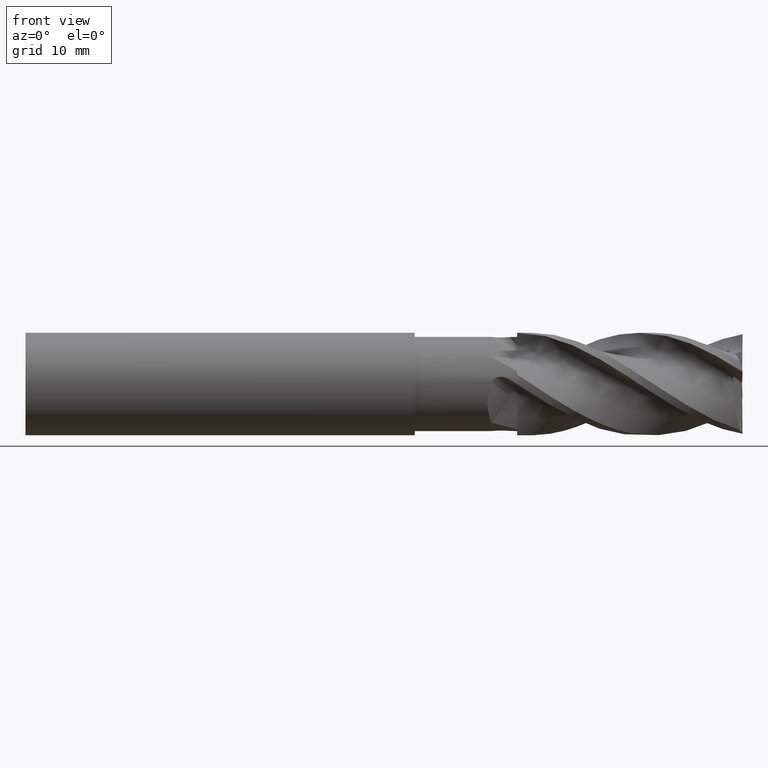
[diagram: clean part render]
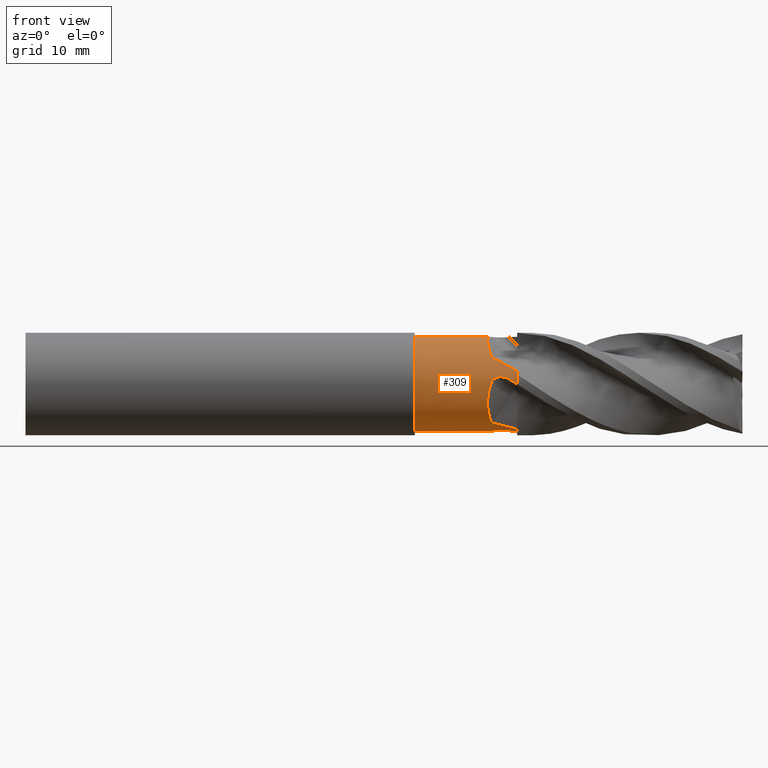
[diagram: same view with one face highlighted and labeled with its STEP entity id]
A machine part, front view. The second image highlights one B-rep face of the part: STEP entity #309.
In plain terms, the highlighted cylindrical surface (partial cylindrical patch) has radius 4.6 mm, axis along (-1, -0, -0).
Its self-contained STEP definition (entity closure, byte-faithful):
#35 = CYLINDRICAL_SURFACE ( 'NONE', #132, 4.600000000000010300 ) ;
#86 = FACE_OUTER_BOUND ( 'NONE', #528, .T. ) ;
#132 = AXIS2_PLACEMENT_3D ( 'NONE', #6693, #6692, #6694 ) ;
#231 = B_SPLINE_CURVE_WITH_KNOTS ( 'NONE', 3,
 ( #3696, #3706, #3707, #3708, #3709, #3710, #3711 ),
 .UNSPECIFIED., .F., .F.,
 ( 4, 3, 4 ),
 ( 0.0000000000000000000, 0.0004603173848410696700, 0.0009209682350431431300 ),
 .UNSPECIFIED. ) ;
#265 = B_SPLINE_CURVE_WITH_KNOTS ( 'NONE', 3,
 ( #3535, #3539, #3540, #3541 ),
 .UNSPECIFIED., .F., .F.,
 ( 4, 4 ),
 ( 0.0000000000000000000, 0.0001394669327448985800 ),
 .UNSPECIFIED. ) ;
#266 = B_SPLINE_CURVE_WITH_KNOTS ( 'NONE', 3,
 ( #3520, #3524, #3525, #3526, #3527, #3528, #3529 ),
 .UNSPECIFIED., .F., .F.,
 ( 4, 3, 4 ),
 ( 0.0000000000000000000, 0.0004603173848409889600, 0.0009209682350429780100 ),
 .UNSPECIFIED. ) ;
#272 = B_SPLINE_CURVE_WITH_KNOTS ( 'NONE', 3,
 ( #3559, #3576, #3577, #3578 ),
 .UNSPECIFIED., .F., .F.,
 ( 4, 4 ),
 ( 0.0000000000000000000, 0.002905963386923827700 ),
 .UNSPECIFIED. ) ;
#275 = B_SPLINE_CURVE_WITH_KNOTS ( 'NONE', 3,
 ( #3611, #3619, #3620, #3621, #3622, #3623, #3624, #3625, #3626, #3627, #3628, #3629, #3630, #3631, #3632, #3633 ),
 .UNSPECIFIED., .F., .F.,
 ( 4, 2, 2, 2, 2, 2, 2, 4 ),
 ( 0.0000000000000000000, 0.001154803165783937200, 0.001732204748675906200, 0.002309606331567875200, 0.002887007914459845500, 0.003464409497351815000, 0.004041811080243784900, 0.004619212663135753900 ),
 .UNSPECIFIED. ) ;
#282 = B_SPLINE_CURVE_WITH_KNOTS ( 'NONE', 3,
 ( #3573, #3594, #3595, #3596, #3597, #3598, #3599, #3600, #3601, #3602 ),
 .UNSPECIFIED., .F., .F.,
 ( 4, 2, 2, 2, 4 ),
 ( 7.489632195324384100E-018, 0.0005000383848467683400, 0.001000076769693529300, 0.001500115154540290300, 0.002000153539387050800 ),
 .UNSPECIFIED. ) ;
#291 = B_SPLINE_CURVE_WITH_KNOTS ( 'NONE', 3,
 ( #3756, #3763, #3764, #3765, #3766, #3767, #3768, #3769 ),
 .UNSPECIFIED., .F., .F.,
 ( 4, 2, 2, 4 ),
 ( 0.0001394669327448974200, 0.001259403365342574600, 0.002379339797940251900, 0.004619212663135605600 ),
 .UNSPECIFIED. ) ;
#309 = ADVANCED_FACE ( 'NONE', ( #86 ), #35, .T. ) ;
#356 = B_SPLINE_CURVE_WITH_KNOTS ( 'NONE', 3,
 ( #4092, #4105, #4106, #4107 ),
 .UNSPECIFIED., .F., .F.,
 ( 4, 4 ),
 ( 0.0000000000000000000, 0.002905963386928197100 ),
 .UNSPECIFIED. ) ;
#358 = B_SPLINE_CURVE_WITH_KNOTS ( 'NONE', 3,
 ( #4102, #4111, #4112, #4113, #4114, #4115, #4116, #4117, #4118, #4119 ),
 .UNSPECIFIED., .F., .F.,
 ( 4, 2, 2, 2, 4 ),
 ( 1.893477691975264900E-018, 0.0005000383848470057800, 0.001000076769694009800, 0.001500115154541013700, 0.002000153539388017500 ),
 .UNSPECIFIED. ) ;
#387 = EDGE_CURVE ( 'NONE', #3946, #3849, #266, .T. ) ;
#390 = EDGE_CURVE ( 'NONE', #3809, #3814, #543, .T. ) ;
#392 = EDGE_CURVE ( 'NONE', #3898, #3985, #265, .T. ) ;
#400 = EDGE_CURVE ( 'NONE', #3873, #3959, #272, .T. ) ;
#403 = EDGE_CURVE ( 'NONE', #3945, #3909, #282, .T. ) ;
#410 = EDGE_CURVE ( 'NONE', #3909, #3959, #275, .T. ) ;
#422 = EDGE_CURVE ( 'NONE', #3866, #3945, #231, .T. ) ;
#437 = EDGE_CURVE ( 'NONE', #3809, #3907, #291, .T. ) ;
#441 = EDGE_CURVE ( 'NONE', #3866, #3808, #1878, .T. ) ;
#443 = EDGE_CURVE ( 'NONE', #3946, #3873, #1880, .T. ) ;
#448 = EDGE_CURVE ( 'NONE', #3978, #3814, #1882, .T. ) ;
#456 = EDGE_CURVE ( 'NONE', #3985, #3978, #1883, .T. ) ;
#461 = EDGE_CURVE ( 'NONE', #3808, #3907, #356, .T. ) ;
#463 = EDGE_CURVE ( 'NONE', #3849, #3898, #358, .T. ) ;
#528 = EDGE_LOOP ( 'NONE', ( #2155, #2140, #2129, #2179, #2224, #2225, #2119, #2161, #2159, #2160, #2215, #2123, #2189, #2188 ) ) ;
#543 = LINE ( 'NONE', #3483, #558 ) ;
#558 = VECTOR ( 'NONE', #3534, 1000.000000000000000 ) ;
#1836 = AXIS2_PLACEMENT_3D ( 'NONE', #3790, #3791, #3792 ) ;
#1853 = AXIS2_PLACEMENT_3D ( 'NONE', #5610, #4019, #4020 ) ;
#1861 = AXIS2_PLACEMENT_3D ( 'NONE', #3798, #3799, #3800 ) ;
#1878 = CIRCLE ( 'NONE', #1836, 4.600000000000011200 ) ;
#1880 = CIRCLE ( 'NONE', #1861, 4.600000000000011200 ) ;
#1882 = CIRCLE ( 'NONE', #1853, 4.600000000000010300 ) ;
#1883 = LINE ( 'NONE', #4077, #1885 ) ;
#1885 = VECTOR ( 'NONE', #4078, 1000.000000000000000 ) ;
#2119 = ORIENTED_EDGE ( 'NONE', *, *, #410, .F. ) ;
#2123 = ORIENTED_EDGE ( 'NONE', *, *, #437, .F. ) ;
#2129 = ORIENTED_EDGE ( 'NONE', *, *, #463, .F. ) ;
#2140 = ORIENTED_EDGE ( 'NONE', *, *, #392, .F. ) ;
#2155 = ORIENTED_EDGE ( 'NONE', *, *, #456, .F. ) ;
#2159 = ORIENTED_EDGE ( 'NONE', *, *, #422, .F. ) ;
#2160 = ORIENTED_EDGE ( 'NONE', *, *, #441, .T. ) ;
#2161 = ORIENTED_EDGE ( 'NONE', *, *, #403, .F. ) ;
#2179 = ORIENTED_EDGE ( 'NONE', *, *, #387, .F. ) ;
#2188 = ORIENTED_EDGE ( 'NONE', *, *, #448, .F. ) ;
#2189 = ORIENTED_EDGE ( 'NONE', *, *, #390, .T. ) ;
#2215 = ORIENTED_EDGE ( 'NONE', *, *, #461, .T. ) ;
#2224 = ORIENTED_EDGE ( 'NONE', *, *, #443, .T. ) ;
#2225 = ORIENTED_EDGE ( 'NONE', *, *, #400, .T. ) ;
#3483 = CARTESIAN_POINT ( 'NONE',  ( -39.76065438357068200, 0.0000000000000000000, 4.600000000000010300 ) ) ;
#3520 = CARTESIAN_POINT ( 'NONE',  ( 8.000000000000007100, 3.036449750968037500E-014, -4.605184375000007400 ) ) ;
#3524 = CARTESIAN_POINT ( 'NONE',  ( 7.868793384392407800, -0.07955117917516911500, -4.600000000000104400 ) ) ;
#3525 = CARTESIAN_POINT ( 'NONE',  ( 7.737590184320711600, -0.1591347650812219000, -4.597935103368228300 ) ) ;
#3526 = CARTESIAN_POINT ( 'NONE',  ( 7.606393851123984400, -0.2385957955032738100, -4.593808011483311300 ) ) ;
#3527 = CARTESIAN_POINT ( 'NONE',  ( 7.475102490557719500, -0.3181143806794700100, -4.589677930287061600 ) ) ;
#3528 = CARTESIAN_POINT ( 'NONE',  ( 7.343794155087728400, -0.3975244961901638300, -4.583482383769851500 ) ) ;
#3529 = CARTESIAN_POINT ( 'NONE',  ( 7.212488416756833100, -0.4766979687024656700, -4.575233223195840400 ) ) ;
#3534 = DIRECTION ( 'NONE',  ( -1.000000000000000000, -0.0000000000000000000, -0.0000000000000000000 ) ) ;
#3535 = CARTESIAN_POINT ( 'NONE',  ( 5.479653657439059500, -0.1325791013078299600, -4.598089035881808500 ) ) ;
#3539 = CARTESIAN_POINT ( 'NONE',  ( 5.462954686791660700, -0.08848032806910706400, -4.599360558829519400 ) ) ;
#3540 = CARTESIAN_POINT ( 'NONE',  ( 5.446892736289899300, -0.04428547051299492500, -4.599999999999997000 ) ) ;
#3541 = CARTESIAN_POINT ( 'NONE',  ( 5.431449277500711000, -1.505089455844377300E-012, -4.600000000000010300 ) ) ;
#3559 = CARTESIAN_POINT ( 'NONE',  ( 8.000000000000003600, -1.271045549163750000, -4.420909771975806800 ) ) ;
#3573 = CARTESIAN_POINT ( 'NONE',  ( 7.212488416756834800, -4.575233223195841200, 0.4766979687024486300 ) ) ;
#3576 = CARTESIAN_POINT ( 'NONE',  ( 7.166791589801582600, -1.752305131252752200, -4.282543942009266600 ) ) ;
#3577 = CARTESIAN_POINT ( 'NONE',  ( 6.349169878975484200, -2.221283225335070300, -4.058028334126897900 ) ) ;
#3578 = CARTESIAN_POINT ( 'NONE',  ( 5.510535788412889600, -2.624999999999926700, -3.777482627359170400 ) ) ;
#3594 = CARTESIAN_POINT ( 'NONE',  ( 7.067993189817604700, -4.566155453013101900, 0.5638242382892051400 ) ) ;
#3595 = CARTESIAN_POINT ( 'NONE',  ( 6.913947203572541300, -4.557251059108891100, 0.6268903100593176100 ) ) ;
#3596 = CARTESIAN_POINT ( 'NONE',  ( 6.586193568855702700, -4.545936740894491700, 0.7042640303046516800 ) ) ;
#3597 = CARTESIAN_POINT ( 'NONE',  ( 6.419317908961625500, -4.543824963346938100, 0.7169834592303534500 ) ) ;
#3598 = CARTESIAN_POINT ( 'NONE',  ( 6.086315778266536500, -4.549965052882537700, 0.6769258422400027400 ) ) ;
#3599 = CARTESIAN_POINT ( 'NONE',  ( 5.920263181043147000, -4.558864797462735700, 0.6213552826366879300 ) ) ;
#3600 = CARTESIAN_POINT ( 'NONE',  ( 5.646495164123640700, -4.580930169834674700, 0.4294291651762046100 ) ) ;
#3601 = CARTESIAN_POINT ( 'NONE',  ( 5.539897608899383200, -4.593501832972082300, 0.2916718029213856700 ) ) ;
#3602 = CARTESIAN_POINT ( 'NONE',  ( 5.479653657438770900, -4.598089035881802300, 0.1325791013080593900 ) ) ;
#3611 = CARTESIAN_POINT ( 'NONE',  ( 5.479653657438770900, -4.598089035881802300, 0.1325791013080593900 ) ) ;
#3619 = CARTESIAN_POINT ( 'NONE',  ( 5.341384149467095300, -4.608617400537798200, -0.2325641046188019200 ) ) ;
#3620 = CARTESIAN_POINT ( 'NONE',  ( 5.246090279077469300, -4.576330077552106500, -0.6041714904932897800 ) ) ;
#3621 = CARTESIAN_POINT ( 'NONE',  ( 5.157486303599164000, -4.453487895098462000, -1.167647468360973200 ) ) ;
#3622 = CARTESIAN_POINT ( 'NONE',  ( 5.137592436609251600, -4.400298793423909100, -1.354395617962350200 ) ) ;
#3623 = CARTESIAN_POINT ( 'NONE',  ( 5.115560468049380900, -4.271830994394246500, -1.717112959795070300 ) ) ;
#3624 = CARTESIAN_POINT ( 'NONE',  ( 5.113217325111937900, -4.196286642704038200, -1.894391317715600000 ) ) ;
#3625 = CARTESIAN_POINT ( 'NONE',  ( 5.124391889562644100, -4.022122344577808500, -2.240551694922587000 ) ) ;
#3626 = CARTESIAN_POINT ( 'NONE',  ( 5.138071781638307900, -3.923266805072096500, -2.409328542010864500 ) ) ;
#3627 = CARTESIAN_POINT ( 'NONE',  ( 5.179075577397831000, -3.708774727442371200, -2.727980291023665700 ) ) ;
#3628 = CARTESIAN_POINT ( 'NONE',  ( 5.206418331807239700, -3.592470438875023500, -2.879312246511411800 ) ) ;
#3629 = CARTESIAN_POINT ( 'NONE',  ( 5.273652374299908600, -3.342121847245966800, -3.166465604623346600 ) ) ;
#3630 = CARTESIAN_POINT ( 'NONE',  ( 5.313806354183521200, -3.207356610815963000, -3.302808407504580500 ) ) ;
#3631 = CARTESIAN_POINT ( 'NONE',  ( 5.404429440297716900, -2.925766841760602000, -3.554654440769454500 ) ) ;
#3632 = CARTESIAN_POINT ( 'NONE',  ( 5.454982710756625300, -2.778519324520898300, -3.670800938355824900 ) ) ;
#3633 = CARTESIAN_POINT ( 'NONE',  ( 5.510535788412889600, -2.624999999999926700, -3.777482627359170400 ) ) ;
#3696 = CARTESIAN_POINT ( 'NONE',  ( 8.000000000000007100, -4.605184375000007400, -4.641565701274867300E-014 ) ) ;
#3706 = CARTESIAN_POINT ( 'NONE',  ( 7.868793384392386500, -4.600000000000313200, 0.07955117917486463600 ) ) ;
#3707 = CARTESIAN_POINT ( 'NONE',  ( 7.737590184320801300, -4.597935103368231900, 0.1591347650811456800 ) ) ;
#3708 = CARTESIAN_POINT ( 'NONE',  ( 7.606393851124051000, -4.593808011483314900, 0.2385957955032106700 ) ) ;
#3709 = CARTESIAN_POINT ( 'NONE',  ( 7.475102490557762100, -4.589677930287065200, 0.3181143806794201600 ) ) ;
#3710 = CARTESIAN_POINT ( 'NONE',  ( 7.343794155087748800, -4.583482383769852400, 0.3975244961901295300 ) ) ;
#3711 = CARTESIAN_POINT ( 'NONE',  ( 7.212488416756834800, -4.575233223195841200, 0.4766979687024486300 ) ) ;
#3756 = CARTESIAN_POINT ( 'NONE',  ( 5.431449277500712800, 1.505916160000897500E-012, 4.600000000000008500 ) ) ;
#3763 = CARTESIAN_POINT ( 'NONE',  ( 5.307436425113911200, -0.3556177144230767700, 4.600000000000126700 ) ) ;
#3764 = CARTESIAN_POINT ( 'NONE',  ( 5.222661509523168100, -0.7171974708939185000, 4.559221629722453700 ) ) ;
#3765 = CARTESIAN_POINT ( 'NONE',  ( 5.121093107732343200, -1.446799906821942100, 4.382652634056881000 ) ) ;
#3766 = CARTESIAN_POINT ( 'NONE',  ( 5.106611558246247500, -1.796267669437426700, 4.251493163376383500 ) ) ;
#3767 = CARTESIAN_POINT ( 'NONE',  ( 5.150309586611117000, -2.797452735564816900, 3.728450727351723800 ) ) ;
#3768 = CARTESIAN_POINT ( 'NONE',  ( 5.295032688131899000, -3.363639944048553600, 3.220536589205890400 ) ) ;
#3769 = CARTESIAN_POINT ( 'NONE',  ( 5.510535788412889600, -3.777482627359160200, 2.624999999999940000 ) ) ;
#3790 = CARTESIAN_POINT ( 'NONE',  ( 8.000000000000007100, 0.0000000000000000000, 0.0000000000000000000 ) ) ;
#3791 = DIRECTION ( 'NONE',  ( -1.000000000000000000, -0.0000000000000000000, -0.0000000000000000000 ) ) ;
#3792 = DIRECTION ( 'NONE',  ( 0.0000000000000000000, 0.0000000000000000000, 1.000000000000000000 ) ) ;
#3798 = CARTESIAN_POINT ( 'NONE',  ( 8.000000000000007100, 0.0000000000000000000, 0.0000000000000000000 ) ) ;
#3799 = DIRECTION ( 'NONE',  ( -1.000000000000000000, -0.0000000000000000000, -0.0000000000000000000 ) ) ;
#3800 = DIRECTION ( 'NONE',  ( 0.0000000000000000000, 0.0000000000000000000, 1.000000000000000000 ) ) ;
#3808 = VERTEX_POINT ( 'NONE', #4245 ) ;
#3809 = VERTEX_POINT ( 'NONE', #4246 ) ;
#3814 = VERTEX_POINT ( 'NONE', #4242 ) ;
#3849 = VERTEX_POINT ( 'NONE', #4257 ) ;
#3866 = VERTEX_POINT ( 'NONE', #4262 ) ;
#3873 = VERTEX_POINT ( 'NONE', #4267 ) ;
#3898 = VERTEX_POINT ( 'NONE', #4274 ) ;
#3907 = VERTEX_POINT ( 'NONE', #4279 ) ;
#3909 = VERTEX_POINT ( 'NONE', #4281 ) ;
#3945 = VERTEX_POINT ( 'NONE', #4306 ) ;
#3946 = VERTEX_POINT ( 'NONE', #4307 ) ;
#3959 = VERTEX_POINT ( 'NONE', #4319 ) ;
#3978 = VERTEX_POINT ( 'NONE', #4336 ) ;
#3985 = VERTEX_POINT ( 'NONE', #4340 ) ;
#4019 = DIRECTION ( 'NONE',  ( -1.000000000000000000, -0.0000000000000000000, -0.0000000000000000000 ) ) ;
#4020 = DIRECTION ( 'NONE',  ( 0.0000000000000000000, 0.0000000000000000000, 1.000000000000000000 ) ) ;
#4077 = CARTESIAN_POINT ( 'NONE',  ( -39.76065438357068200, 5.633375276077836900E-016, -4.600000000000010300 ) ) ;
#4078 = DIRECTION ( 'NONE',  ( -1.000000000000000000, -0.0000000000000000000, -0.0000000000000000000 ) ) ;
#4092 = CARTESIAN_POINT ( 'NONE',  ( 8.000000000000010700, -4.420909771978176500, 1.271045549155507700 ) ) ;
#4102 = CARTESIAN_POINT ( 'NONE',  ( 7.212488416756833100, -0.4766979687024656700, -4.575233223195840400 ) ) ;
#4105 = CARTESIAN_POINT ( 'NONE',  ( 7.166791589799086800, -4.282543942012870800, 1.752305131243591100 ) ) ;
#4106 = CARTESIAN_POINT ( 'NONE',  ( 6.349169878981699700, -4.058028334122646200, 2.221283225341193800 ) ) ;
#4107 = CARTESIAN_POINT ( 'NONE',  ( 5.510535788412889600, -3.777482627359160200, 2.624999999999940000 ) ) ;
#4111 = CARTESIAN_POINT ( 'NONE',  ( 7.067993189817608300, -0.5638242382892166800, -4.566155453013100100 ) ) ;
#4112 = CARTESIAN_POINT ( 'NONE',  ( 6.913947203572504000, -0.6268903100594073200, -4.557251059108883100 ) ) ;
#4113 = CARTESIAN_POINT ( 'NONE',  ( 6.586193568855344800, -0.7042640303047647000, -4.545936740894478400 ) ) ;
#4114 = CARTESIAN_POINT ( 'NONE',  ( 6.419317908961608600, -0.7169834592303414600, -4.543824963346939900 ) ) ;
#4115 = CARTESIAN_POINT ( 'NONE',  ( 6.086315778266173200, -0.6769258422398152200, -4.549965052882565300 ) ) ;
#4116 = CARTESIAN_POINT ( 'NONE',  ( 5.920263181042932000, -0.6213552826364433500, -4.558864797462765000 ) ) ;
#4117 = CARTESIAN_POINT ( 'NONE',  ( 5.646495164123639800, -0.4294291651761610300, -4.580930169834675600 ) ) ;
#4118 = CARTESIAN_POINT ( 'NONE',  ( 5.539897608899319300, -0.2916718029214605000, -4.593501832972076900 ) ) ;
#4119 = CARTESIAN_POINT ( 'NONE',  ( 5.479653657439059500, -0.1325791013078299600, -4.598089035881808500 ) ) ;
#4242 = CARTESIAN_POINT ( 'NONE',  ( -1.999999999999994900, 0.0000000000000000000, 4.600000000000010300 ) ) ;
#4245 = CARTESIAN_POINT ( 'NONE',  ( 8.000000000000010700, -4.420909771978176500, 1.271045549155507700 ) ) ;
#4246 = CARTESIAN_POINT ( 'NONE',  ( 5.431449277500712800, 1.505916160000897500E-012, 4.600000000000008500 ) ) ;
#4257 = CARTESIAN_POINT ( 'NONE',  ( 7.212488416756833100, -0.4766979687024656700, -4.575233223195840400 ) ) ;
#4262 = CARTESIAN_POINT ( 'NONE',  ( 8.000000000000007100, -4.605184375000007400, -4.641565701274867300E-014 ) ) ;
#4267 = CARTESIAN_POINT ( 'NONE',  ( 8.000000000000003600, -1.271045549163750000, -4.420909771975806800 ) ) ;
#4274 = CARTESIAN_POINT ( 'NONE',  ( 5.479653657439059500, -0.1325791013078299600, -4.598089035881808500 ) ) ;
#4279 = CARTESIAN_POINT ( 'NONE',  ( 5.510535788412889600, -3.777482627359160200, 2.624999999999940000 ) ) ;
#4281 = CARTESIAN_POINT ( 'NONE',  ( 5.479653657438770900, -4.598089035881802300, 0.1325791013080593900 ) ) ;
#4306 = CARTESIAN_POINT ( 'NONE',  ( 7.212488416756834800, -4.575233223195841200, 0.4766979687024486300 ) ) ;
#4307 = CARTESIAN_POINT ( 'NONE',  ( 8.000000000000007100, 3.036449750968037500E-014, -4.605184375000007400 ) ) ;
#4319 = CARTESIAN_POINT ( 'NONE',  ( 5.510535788412889600, -2.624999999999926700, -3.777482627359170400 ) ) ;
#4336 = CARTESIAN_POINT ( 'NONE',  ( -1.999999999999994900, 5.633375276077836900E-016, -4.600000000000010300 ) ) ;
#4340 = CARTESIAN_POINT ( 'NONE',  ( 5.431449277500711000, -1.505089455844377300E-012, -4.600000000000010300 ) ) ;
#5610 = CARTESIAN_POINT ( 'NONE',  ( -1.999999999999994900, 0.0000000000000000000, 0.0000000000000000000 ) ) ;
#6692 = DIRECTION ( 'NONE',  ( -1.000000000000000000, -0.0000000000000000000, -0.0000000000000000000 ) ) ;
#6693 = CARTESIAN_POINT ( 'NONE',  ( -39.76065438357068200, 0.0000000000000000000, 0.0000000000000000000 ) ) ;
#6694 = DIRECTION ( 'NONE',  ( 0.0000000000000000000, 0.0000000000000000000, 1.000000000000000000 ) ) ;